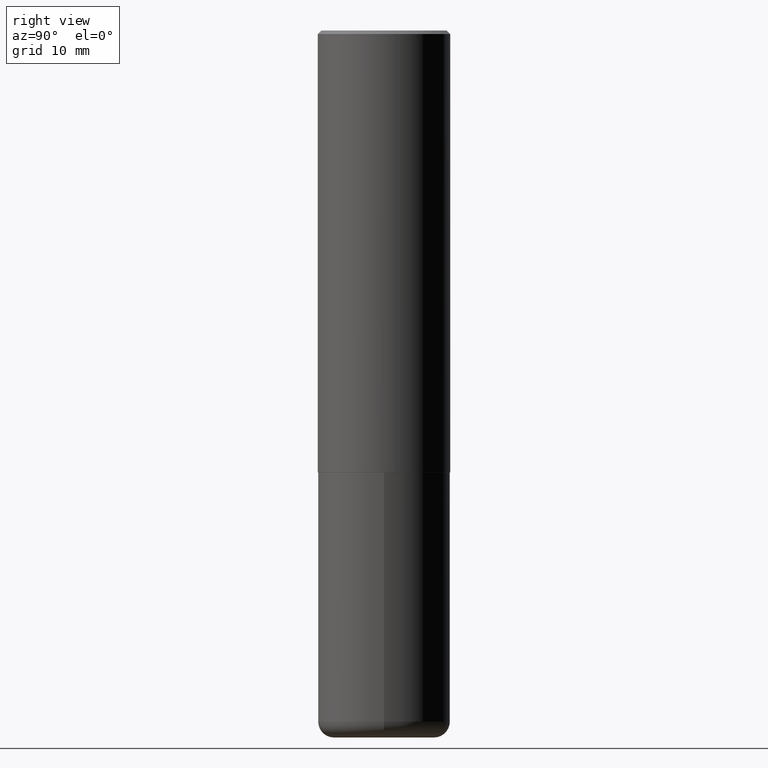
[diagram: clean part render]
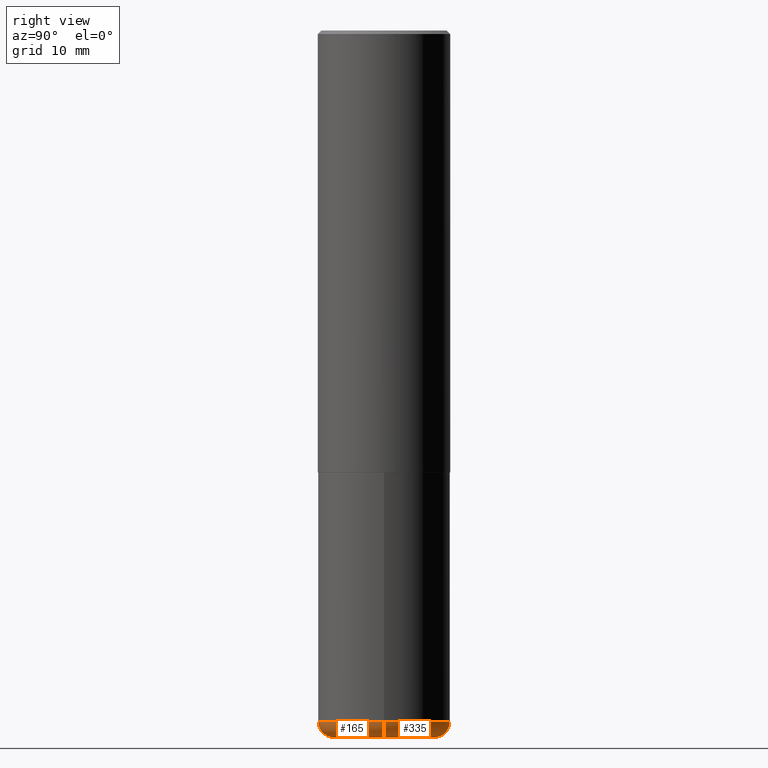
[diagram: same view with one multi-face feature highlighted, each face labeled with its STEP entity id]
A machine part, right view. The highlighted faces form ONE feature: a constant-radius fillet chain: 2 tangent blend faces with common blend radius 2.286 mm. The faces share edges in the B-rep.
Their STEP definitions:
[1] entity #165 (Torus):
#6 = VERTEX_POINT ( 'NONE', #354 ) ;
#18 = CARTESIAN_POINT ( 'NONE',  ( 0.2850000000000000311, -1.595606971851316740E-14, -4.000000000000000000 ) ) ;
#22 = DIRECTION ( 'NONE',  ( -2.445468806185136597E-29, 3.491481338843145583E-15, 1.000000000000000000 ) ) ;
#31 = CARTESIAN_POINT ( 'NONE',  ( 9.781875224740546387E-29, -1.396592535537258233E-14, -4.000000000000000000 ) ) ;
#41 = DIRECTION ( 'NONE',  ( 1.000000000000000000, -6.982962677686273810E-15, 0.000000000000000000 ) ) ;
#58 = EDGE_LOOP ( 'NONE', ( #216, #117, #180, #318 ) ) ;
#74 = DIRECTION ( 'NONE',  ( -1.000000000000000000, 7.105427357600996337E-15, 0.000000000000000000 ) ) ;
#78 = EDGE_CURVE ( 'NONE', #97, #379, #330, .T. ) ;
#86 = AXIS2_PLACEMENT_3D ( 'NONE', #31, #129, #259 ) ;
#95 = TOROIDAL_SURFACE ( 'NONE', #279, 0.2850000000000000311, 0.08999999999999989952 ) ;
#97 = VERTEX_POINT ( 'NONE', #231 ) ;
#103 = CARTESIAN_POINT ( 'NONE',  ( -0.2850000000000000311, -1.162664523796041410E-14, -3.910000000000000142 ) ) ;
#117 = ORIENTED_EDGE ( 'NONE', *, *, #78, .T. ) ;
#129 = DIRECTION ( 'NONE',  ( -2.445468806185136597E-29, 3.491481338843145583E-15, 1.000000000000000000 ) ) ;
#138 = FACE_OUTER_BOUND ( 'NONE', #58, .T. ) ;
#141 = CARTESIAN_POINT ( 'NONE',  ( 0.2850000000000000311, -1.564183639801728729E-14, -3.910000000000000142 ) ) ;
#143 = CIRCLE ( 'NONE', #150, 0.08999999999999992728 ) ;
#150 = AXIS2_PLACEMENT_3D ( 'NONE', #141, #364, #41 ) ;
#165 = ADVANCED_FACE ( 'NONE', ( #138 ), #95, .T. ) ;
#172 = CARTESIAN_POINT ( 'NONE',  ( 0.3749999999999999445, -1.627030303900904751E-14, -3.910000000000000142 ) ) ;
#180 = ORIENTED_EDGE ( 'NONE', *, *, #265, .T. ) ;
#197 = AXIS2_PLACEMENT_3D ( 'NONE', #415, #22, #370 ) ;
#216 = ORIENTED_EDGE ( 'NONE', *, *, #296, .F. ) ;
#224 = VERTEX_POINT ( 'NONE', #172 ) ;
#231 = CARTESIAN_POINT ( 'NONE',  ( -0.2850000000000000311, -1.146401766711631116E-14, -4.000000000000000000 ) ) ;
#232 = DIRECTION ( 'NONE',  ( 7.105427357601001859E-15, 1.000000000000000000, -3.491481338843145583E-15 ) ) ;
#235 = DIRECTION ( 'NONE',  ( -2.445468806185136597E-29, 3.491481338843145583E-15, 1.000000000000000000 ) ) ;
#259 = DIRECTION ( 'NONE',  ( 1.000000000000000000, -6.982962677686266711E-15, 0.000000000000000000 ) ) ;
#260 = CIRCLE ( 'NONE', #197, 0.3749999999999999445 ) ;
#265 = EDGE_CURVE ( 'NONE', #379, #224, #143, .T. ) ;
#267 = CARTESIAN_POINT ( 'NONE',  ( 9.561783032183883600E-29, -1.365169203487670064E-14, -3.910000000000000142 ) ) ;
#269 = DIRECTION ( 'NONE',  ( 1.000000000000000000, -6.982962677686263555E-15, 4.883557194083111219E-29 ) ) ;
#279 = AXIS2_PLACEMENT_3D ( 'NONE', #267, #235, #269 ) ;
#296 = EDGE_CURVE ( 'NONE', #97, #6, #388, .T. ) ;
#316 = AXIS2_PLACEMENT_3D ( 'NONE', #103, #232, #74 ) ;
#318 = ORIENTED_EDGE ( 'NONE', *, *, #367, .F. ) ;
#330 = CIRCLE ( 'NONE', #86, 0.2850000000000000311 ) ;
#354 = CARTESIAN_POINT ( 'NONE',  ( -0.3749999999999999445, -1.098715677577632652E-14, -3.910000000000000142 ) ) ;
#364 = DIRECTION ( 'NONE',  ( -6.982962677686266711E-15, -1.000000000000000000, 3.491481338843145583E-15 ) ) ;
#367 = EDGE_CURVE ( 'NONE', #6, #224, #260, .T. ) ;
#370 = DIRECTION ( 'NONE',  ( 1.000000000000000000, -6.982962677686263555E-15, 0.000000000000000000 ) ) ;
#379 = VERTEX_POINT ( 'NONE', #18 ) ;
#388 = CIRCLE ( 'NONE', #316, 0.08999999999999992728 ) ;
#415 = CARTESIAN_POINT ( 'NONE',  ( 9.561783032183883600E-29, -1.365169203487670064E-14, -3.910000000000000142 ) ) ;
[2] entity #335 (Torus):
#6 = VERTEX_POINT ( 'NONE', #354 ) ;
#18 = CARTESIAN_POINT ( 'NONE',  ( 0.2850000000000000311, -1.595606971851316740E-14, -4.000000000000000000 ) ) ;
#41 = DIRECTION ( 'NONE',  ( 1.000000000000000000, -6.982962677686273810E-15, 0.000000000000000000 ) ) ;
#45 = EDGE_CURVE ( 'NONE', #379, #97, #109, .T. ) ;
#74 = DIRECTION ( 'NONE',  ( -1.000000000000000000, 7.105427357600996337E-15, 0.000000000000000000 ) ) ;
#75 = AXIS2_PLACEMENT_3D ( 'NONE', #214, #277, #368 ) ;
#97 = VERTEX_POINT ( 'NONE', #231 ) ;
#103 = CARTESIAN_POINT ( 'NONE',  ( -0.2850000000000000311, -1.162664523796041410E-14, -3.910000000000000142 ) ) ;
#109 = CIRCLE ( 'NONE', #414, 0.2850000000000000311 ) ;
#121 = ORIENTED_EDGE ( 'NONE', *, *, #45, .T. ) ;
#141 = CARTESIAN_POINT ( 'NONE',  ( 0.2850000000000000311, -1.564183639801728729E-14, -3.910000000000000142 ) ) ;
#143 = CIRCLE ( 'NONE', #150, 0.08999999999999992728 ) ;
#146 = DIRECTION ( 'NONE',  ( 1.000000000000000000, -6.982962677686263555E-15, 0.000000000000000000 ) ) ;
#150 = AXIS2_PLACEMENT_3D ( 'NONE', #141, #364, #41 ) ;
#151 = DIRECTION ( 'NONE',  ( -2.445468806185136597E-29, 3.491481338843145583E-15, 1.000000000000000000 ) ) ;
#172 = CARTESIAN_POINT ( 'NONE',  ( 0.3749999999999999445, -1.627030303900904751E-14, -3.910000000000000142 ) ) ;
#191 = DIRECTION ( 'NONE',  ( -2.445468806185136597E-29, 3.491481338843145583E-15, 1.000000000000000000 ) ) ;
#202 = ORIENTED_EDGE ( 'NONE', *, *, #362, .F. ) ;
#214 = CARTESIAN_POINT ( 'NONE',  ( 9.561783032183883600E-29, -1.365169203487670064E-14, -3.910000000000000142 ) ) ;
#224 = VERTEX_POINT ( 'NONE', #172 ) ;
#231 = CARTESIAN_POINT ( 'NONE',  ( -0.2850000000000000311, -1.146401766711631116E-14, -4.000000000000000000 ) ) ;
#232 = DIRECTION ( 'NONE',  ( 7.105427357601001859E-15, 1.000000000000000000, -3.491481338843145583E-15 ) ) ;
#265 = EDGE_CURVE ( 'NONE', #379, #224, #143, .T. ) ;
#272 = CARTESIAN_POINT ( 'NONE',  ( 9.561783032183883600E-29, -1.365169203487670064E-14, -3.910000000000000142 ) ) ;
#277 = DIRECTION ( 'NONE',  ( -2.445468806185136597E-29, 3.491481338843145583E-15, 1.000000000000000000 ) ) ;
#280 = FACE_OUTER_BOUND ( 'NONE', #320, .T. ) ;
#291 = TOROIDAL_SURFACE ( 'NONE', #75, 0.2850000000000000311, 0.08999999999999989952 ) ;
#296 = EDGE_CURVE ( 'NONE', #97, #6, #388, .T. ) ;
#297 = AXIS2_PLACEMENT_3D ( 'NONE', #272, #151, #146 ) ;
#311 = CARTESIAN_POINT ( 'NONE',  ( 9.781875224740546387E-29, -1.396592535537258233E-14, -4.000000000000000000 ) ) ;
#312 = DIRECTION ( 'NONE',  ( 1.000000000000000000, -6.982962677686266711E-15, 0.000000000000000000 ) ) ;
#316 = AXIS2_PLACEMENT_3D ( 'NONE', #103, #232, #74 ) ;
#320 = EDGE_LOOP ( 'NONE', ( #121, #405, #202, #376 ) ) ;
#335 = ADVANCED_FACE ( 'NONE', ( #280 ), #291, .T. ) ;
#354 = CARTESIAN_POINT ( 'NONE',  ( -0.3749999999999999445, -1.098715677577632652E-14, -3.910000000000000142 ) ) ;
#362 = EDGE_CURVE ( 'NONE', #224, #6, #363, .T. ) ;
#363 = CIRCLE ( 'NONE', #297, 0.3749999999999999445 ) ;
#364 = DIRECTION ( 'NONE',  ( -6.982962677686266711E-15, -1.000000000000000000, 3.491481338843145583E-15 ) ) ;
#368 = DIRECTION ( 'NONE',  ( 1.000000000000000000, -6.982962677686263555E-15, 4.883557194083111219E-29 ) ) ;
#376 = ORIENTED_EDGE ( 'NONE', *, *, #265, .F. ) ;
#379 = VERTEX_POINT ( 'NONE', #18 ) ;
#388 = CIRCLE ( 'NONE', #316, 0.08999999999999992728 ) ;
#405 = ORIENTED_EDGE ( 'NONE', *, *, #296, .T. ) ;
#414 = AXIS2_PLACEMENT_3D ( 'NONE', #311, #191, #312 ) ;